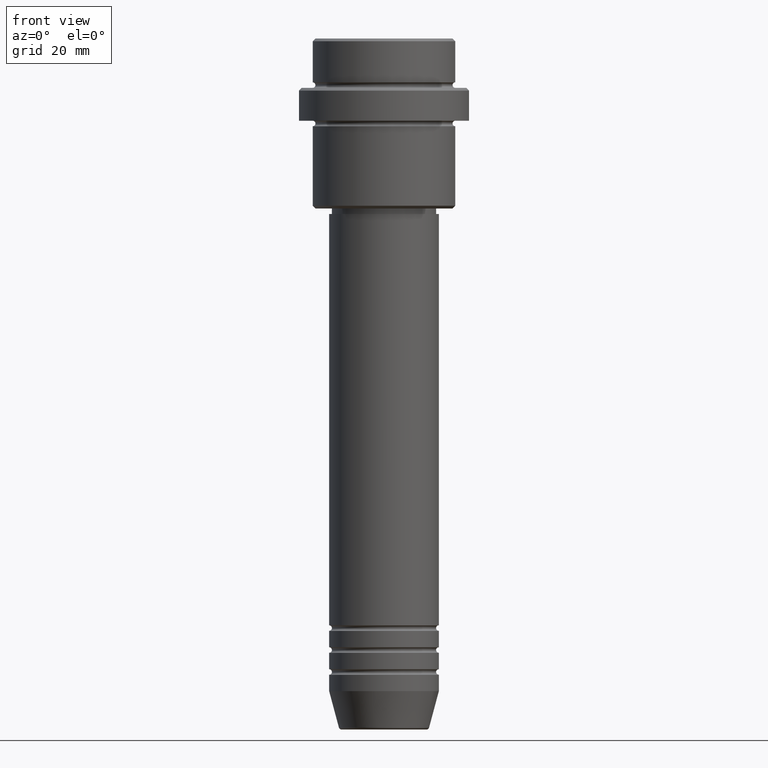
[diagram: clean part render]
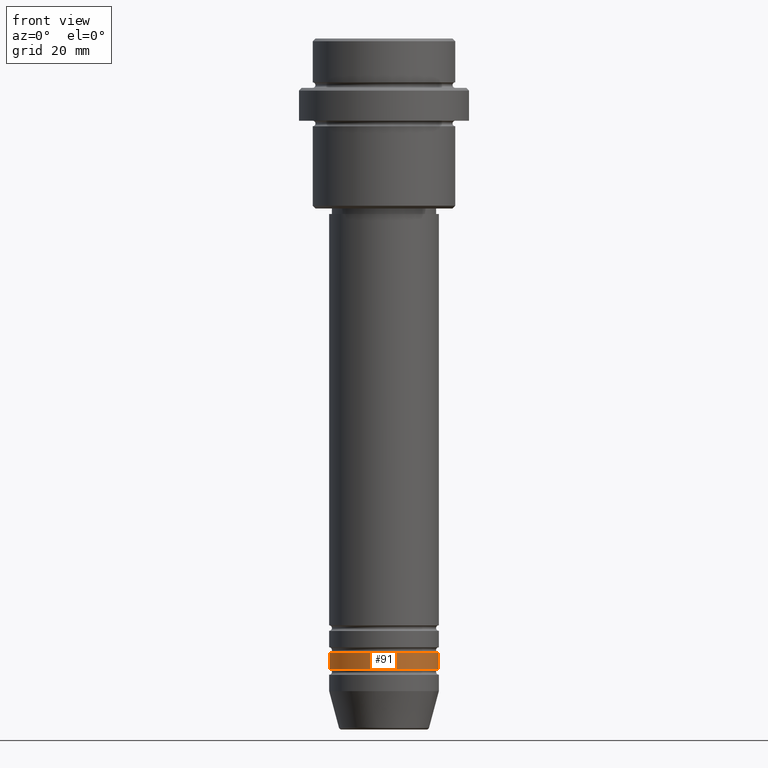
[diagram: same view with one face highlighted and labeled with its STEP entity id]
A machine part, front view. The second image highlights one B-rep face of the part: STEP entity #91.
In plain terms, the highlighted cylindrical surface (partial cylindrical patch) has radius 10 mm, axis along (-0, -0, 1).
Its self-contained STEP definition (entity closure, byte-faithful):
#49 = EDGE_CURVE ( 'NONE', #1049, #58, #1114, .T. ) ;
#57 = LINE ( 'NONE', #65, #776 ) ;
#58 = VERTEX_POINT ( 'NONE', #150 ) ;
#65 = CARTESIAN_POINT ( 'NONE',  ( -10.00000000000000000, 1.224646799147353256E-15, 0.000000000000000000 ) ) ;
#91 = ADVANCED_FACE ( 'NONE', ( #914 ), #358, .T. ) ;
#150 = CARTESIAN_POINT ( 'NONE',  ( 10.00000000000000000, 0.000000000000000000, -111.9999999999998721 ) ) ;
#166 = CARTESIAN_POINT ( 'NONE',  ( 0.000000000000000000, 0.000000000000000000, -111.9999999999998721 ) ) ;
#213 = AXIS2_PLACEMENT_3D ( 'NONE', #166, #576, #695 ) ;
#278 = EDGE_LOOP ( 'NONE', ( #1252, #810, #1042, #867 ) ) ;
#304 = CIRCLE ( 'NONE', #1188, 10.00000000000000000 ) ;
#308 = VERTEX_POINT ( 'NONE', #1068 ) ;
#311 = LINE ( 'NONE', #403, #756 ) ;
#331 = VERTEX_POINT ( 'NONE', #429 ) ;
#358 = CYLINDRICAL_SURFACE ( 'NONE', #675, 10.00000000000000000 ) ;
#379 = DIRECTION ( 'NONE',  ( 1.000000000000000000, 0.000000000000000000, 0.000000000000000000 ) ) ;
#401 = EDGE_CURVE ( 'NONE', #331, #1049, #57, .T. ) ;
#403 = CARTESIAN_POINT ( 'NONE',  ( 10.00000000000000000, 0.000000000000000000, 0.000000000000000000 ) ) ;
#429 = CARTESIAN_POINT ( 'NONE',  ( -10.00000000000000000, 1.224646799147353256E-15, -114.9999999999998579 ) ) ;
#463 = DIRECTION ( 'NONE',  ( -0.000000000000000000, -0.000000000000000000, 1.000000000000000000 ) ) ;
#576 = DIRECTION ( 'NONE',  ( -0.000000000000000000, -0.000000000000000000, 1.000000000000000000 ) ) ;
#615 = EDGE_CURVE ( 'NONE', #331, #308, #304, .T. ) ;
#675 = AXIS2_PLACEMENT_3D ( 'NONE', #1224, #792, #379 ) ;
#695 = DIRECTION ( 'NONE',  ( 1.000000000000000000, 0.000000000000000000, 0.000000000000000000 ) ) ;
#756 = VECTOR ( 'NONE', #831, 1000.000000000000000 ) ;
#776 = VECTOR ( 'NONE', #463, 1000.000000000000000 ) ;
#792 = DIRECTION ( 'NONE',  ( -0.000000000000000000, -0.000000000000000000, 1.000000000000000000 ) ) ;
#810 = ORIENTED_EDGE ( 'NONE', *, *, #615, .T. ) ;
#831 = DIRECTION ( 'NONE',  ( -0.000000000000000000, -0.000000000000000000, 1.000000000000000000 ) ) ;
#867 = ORIENTED_EDGE ( 'NONE', *, *, #49, .F. ) ;
#902 = CARTESIAN_POINT ( 'NONE',  ( 0.000000000000000000, 0.000000000000000000, -114.9999999999998579 ) ) ;
#914 = FACE_OUTER_BOUND ( 'NONE', #278, .T. ) ;
#1042 = ORIENTED_EDGE ( 'NONE', *, *, #1189, .T. ) ;
#1049 = VERTEX_POINT ( 'NONE', #1153 ) ;
#1068 = CARTESIAN_POINT ( 'NONE',  ( 10.00000000000000000, 0.000000000000000000, -114.9999999999998579 ) ) ;
#1114 = CIRCLE ( 'NONE', #213, 10.00000000000000000 ) ;
#1153 = CARTESIAN_POINT ( 'NONE',  ( -10.00000000000000000, 1.224646799147353256E-15, -111.9999999999998721 ) ) ;
#1188 = AXIS2_PLACEMENT_3D ( 'NONE', #902, #1247, #1356 ) ;
#1189 = EDGE_CURVE ( 'NONE', #308, #58, #311, .T. ) ;
#1224 = CARTESIAN_POINT ( 'NONE',  ( 0.000000000000000000, 0.000000000000000000, 0.000000000000000000 ) ) ;
#1247 = DIRECTION ( 'NONE',  ( -0.000000000000000000, -0.000000000000000000, 1.000000000000000000 ) ) ;
#1252 = ORIENTED_EDGE ( 'NONE', *, *, #401, .F. ) ;
#1356 = DIRECTION ( 'NONE',  ( 1.000000000000000000, 0.000000000000000000, 0.000000000000000000 ) ) ;